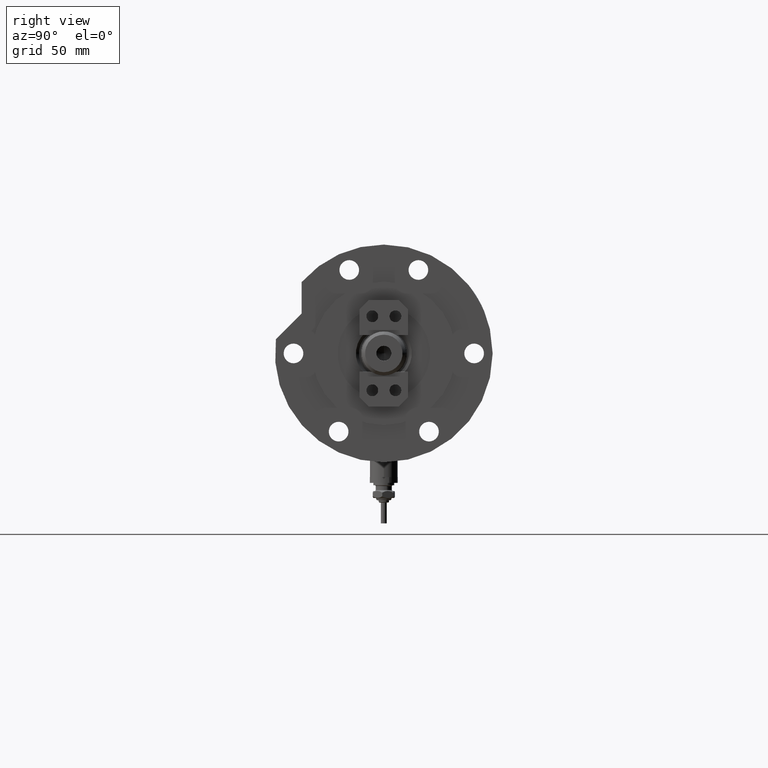
[diagram: clean part render]
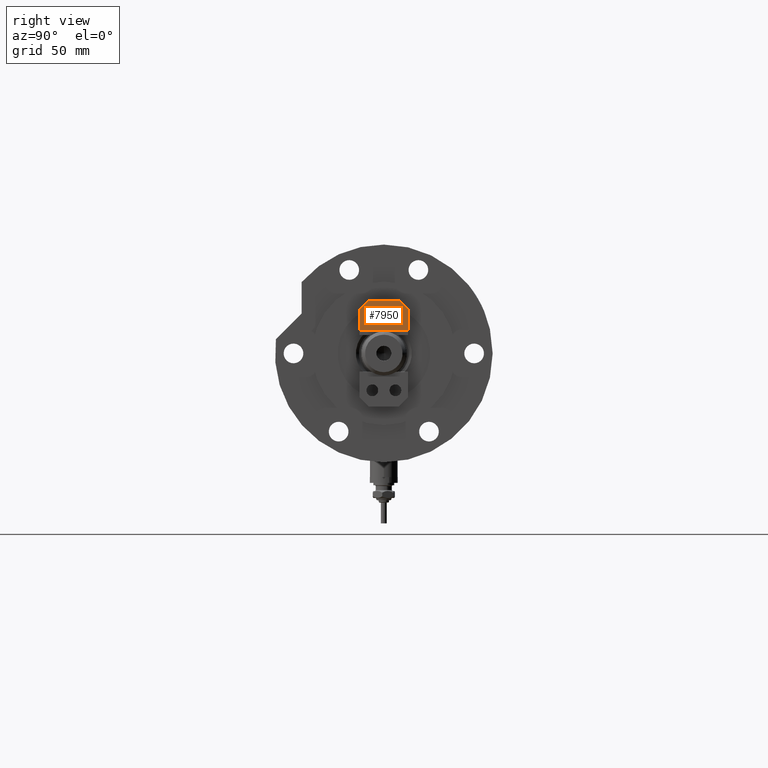
[diagram: same view with one face highlighted and labeled with its STEP entity id]
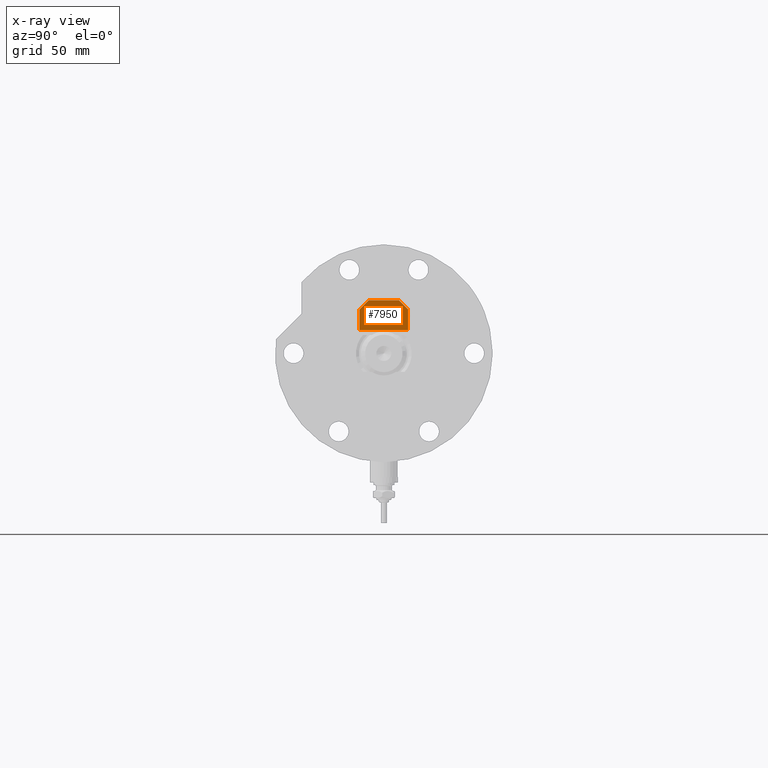
[diagram: x-ray of the same camera — body ghosted, the highlighted face saturated]
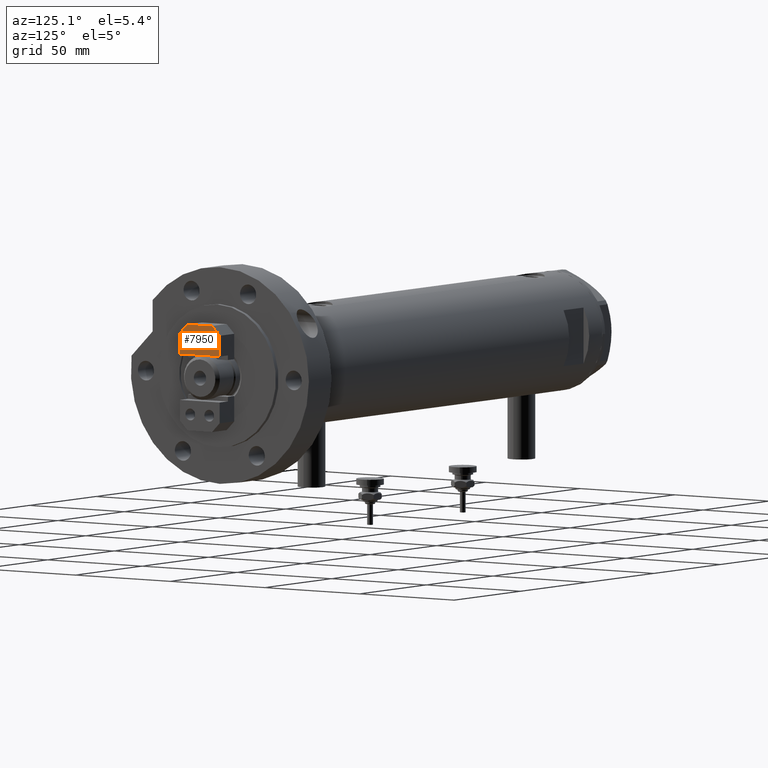
[diagram: same view with one face highlighted and labeled with its STEP entity id]
A machine part, right view. The second image highlights one B-rep face of the part: STEP entity #7950.
The next image is the same camera in x-ray: the body ghosted, the highlighted face saturated — about 0% of this face is hidden behind the body in this view.
A second angle (auxiliary view) of the same face is appended — the face is thin or edge-on in the first view.
In plain terms, the highlighted planar face has unit normal (1, -0, -0).
Its self-contained STEP definition (entity closure, byte-faithful):
#131 = VERTEX_POINT ( 'NONE', #6563 ) ;
#346 = DIRECTION ( 'NONE',  ( -1.000000000000000000, 0.000000000000000000, 0.000000000000000000 ) ) ;
#373 = CARTESIAN_POINT ( 'NONE',  ( 5.499999999999999112, 10.49999999999999822, 11.00000000000000000 ) ) ;
#419 = FACE_OUTER_BOUND ( 'NONE', #3415, .T. ) ;
#491 = EDGE_CURVE ( 'NONE', #131, #6639, #5237, .T. ) ;
#531 = AXIS2_PLACEMENT_3D ( 'NONE', #2885, #5541, #6066 ) ;
#697 = EDGE_CURVE ( 'NONE', #7316, #7827, #3597, .T. ) ;
#706 = AXIS2_PLACEMENT_3D ( 'NONE', #3429, #5577, #5533 ) ;
#710 = CARTESIAN_POINT ( 'NONE',  ( -0.5000000000000004441, -4.999999999999999112, 11.00000000000000000 ) ) ;
#798 = ORIENTED_EDGE ( 'NONE', *, *, #1372, .T. ) ;
#987 = CARTESIAN_POINT ( 'NONE',  ( 5.499999999999995559, 10.49999999999999822, 11.00000000000000000 ) ) ;
#1013 = CARTESIAN_POINT ( 'NONE',  ( -0.5000000000000004441, 4.999999999999999112, 11.00000000000000000 ) ) ;
#1136 = VECTOR ( 'NONE', #5015, 1000.000000000000000 ) ;
#1191 = VERTEX_POINT ( 'NONE', #987 ) ;
#1287 = VECTOR ( 'NONE', #5016, 1000.000000000000000 ) ;
#1372 = EDGE_CURVE ( 'NONE', #7100, #7236, #5136, .T. ) ;
#1555 = AXIS2_PLACEMENT_3D ( 'NONE', #1013, #3670, #346 ) ;
#1563 = CARTESIAN_POINT ( 'NONE',  ( -7.499999999999999112, -6.499999999999988454, 11.00000000000000000 ) ) ;
#1743 = CARTESIAN_POINT ( 'NONE',  ( -7.000000000000006217, -6.999999999999982236, 11.00000000000000000 ) ) ;
#1834 = DIRECTION ( 'NONE',  ( 1.000000000000000000, 0.000000000000000000, 0.000000000000000000 ) ) ;
#2054 = CARTESIAN_POINT ( 'NONE',  ( 5.499999999999999112, -10.49999999999999822, 11.00000000000000000 ) ) ;
#2065 = EDGE_CURVE ( 'NONE', #1191, #5424, #3789, .T. ) ;
#2143 = ORIENTED_EDGE ( 'NONE', *, *, #5491, .T. ) ;
#2227 = DIRECTION ( 'NONE',  ( -0.000000000000000000, 0.000000000000000000, 1.000000000000000000 ) ) ;
#2297 = EDGE_CURVE ( 'NONE', #4588, #5613, #5304, .T. ) ;
#2472 = CARTESIAN_POINT ( 'NONE',  ( 0.000000000000000000, 0.000000000000000000, 11.00000000000000000 ) ) ;
#2816 = CIRCLE ( 'NONE', #1555, 2.549999999999999822 ) ;
#2865 = AXIS2_PLACEMENT_3D ( 'NONE', #710, #5340, #5379 ) ;
#2885 = CARTESIAN_POINT ( 'NONE',  ( -0.5000000000000004441, -4.999999999999999112, 11.00000000000000000 ) ) ;
#3061 = FACE_BOUND ( 'NONE', #8157, .T. ) ;
#3125 = CARTESIAN_POINT ( 'NONE',  ( -3.050000000000000266, -4.999999999999999112, 11.00000000000000000 ) ) ;
#3143 = LINE ( 'NONE', #1743, #1287 ) ;
#3187 = DIRECTION ( 'NONE',  ( 1.000000000000000000, 0.000000000000000000, 0.000000000000000000 ) ) ;
#3230 = CARTESIAN_POINT ( 'NONE',  ( 2.049999999999999378, 4.999999999999999112, 11.00000000000000000 ) ) ;
#3328 = EDGE_CURVE ( 'NONE', #5613, #4588, #2816, .T. ) ;
#3415 = EDGE_LOOP ( 'NONE', ( #7048, #4819, #2143, #798, #8668, #5849 ) ) ;
#3429 = CARTESIAN_POINT ( 'NONE',  ( -0.5000000000000004441, 4.999999999999999112, 11.00000000000000000 ) ) ;
#3539 = LINE ( 'NONE', #4249, #5901 ) ;
#3597 = CIRCLE ( 'NONE', #531, 2.549999999999999822 ) ;
#3670 = DIRECTION ( 'NONE',  ( 0.000000000000000000, 0.000000000000000000, -1.000000000000000000 ) ) ;
#3789 = LINE ( 'NONE', #6331, #1136 ) ;
#3791 = CARTESIAN_POINT ( 'NONE',  ( 2.049999999999999378, -4.999999999999999112, 11.00000000000000000 ) ) ;
#3829 = DIRECTION ( 'NONE',  ( 8.260587980841940012E-17, -1.000000000000000000, 0.000000000000000000 ) ) ;
#3984 = ORIENTED_EDGE ( 'NONE', *, *, #2297, .T. ) ;
#4026 = VECTOR ( 'NONE', #3187, 1000.000000000000000 ) ;
#4176 = ORIENTED_EDGE ( 'NONE', *, *, #7680, .T. ) ;
#4249 = CARTESIAN_POINT ( 'NONE',  ( -6.999999999999987566, 7.000000000000012434, 11.00000000000000000 ) ) ;
#4485 = CARTESIAN_POINT ( 'NONE',  ( -7.500000000000000888, 10.49999999999999822, 11.00000000000000000 ) ) ;
#4588 = VERTEX_POINT ( 'NONE', #5238 ) ;
#4819 = ORIENTED_EDGE ( 'NONE', *, *, #2065, .T. ) ;
#4851 = FACE_BOUND ( 'NONE', #7863, .T. ) ;
#4927 = VECTOR ( 'NONE', #5058, 1000.000000000000000 ) ;
#4985 = DIRECTION ( 'NONE',  ( -0.7071067811865487940, -0.7071067811865463515, -0.000000000000000000 ) ) ;
#5015 = DIRECTION ( 'NONE',  ( -1.000000000000000000, -0.000000000000000000, -0.000000000000000000 ) ) ;
#5016 = DIRECTION ( 'NONE',  ( 0.7071067811865463515, -0.7071067811865487940, 0.000000000000000000 ) ) ;
#5058 = DIRECTION ( 'NONE',  ( -0.000000000000000000, -1.000000000000000000, -0.000000000000000000 ) ) ;
#5136 = LINE ( 'NONE', #4485, #6291 ) ;
#5229 = AXIS2_PLACEMENT_3D ( 'NONE', #2472, #2227, #1834 ) ;
#5237 = LINE ( 'NONE', #8056, #4026 ) ;
#5238 = CARTESIAN_POINT ( 'NONE',  ( -3.050000000000000266, 4.999999999999999112, 11.00000000000000000 ) ) ;
#5304 = CIRCLE ( 'NONE', #706, 2.549999999999999822 ) ;
#5324 = ORIENTED_EDGE ( 'NONE', *, *, #697, .T. ) ;
#5340 = DIRECTION ( 'NONE',  ( 0.000000000000000000, 0.000000000000000000, -1.000000000000000000 ) ) ;
#5379 = DIRECTION ( 'NONE',  ( -1.000000000000000000, 0.000000000000000000, 0.000000000000000000 ) ) ;
#5424 = VERTEX_POINT ( 'NONE', #6206 ) ;
#5491 = EDGE_CURVE ( 'NONE', #5424, #7100, #3539, .T. ) ;
#5533 = DIRECTION ( 'NONE',  ( -1.000000000000000000, 0.000000000000000000, 0.000000000000000000 ) ) ;
#5541 = DIRECTION ( 'NONE',  ( 0.000000000000000000, 0.000000000000000000, -1.000000000000000000 ) ) ;
#5577 = DIRECTION ( 'NONE',  ( 0.000000000000000000, 0.000000000000000000, -1.000000000000000000 ) ) ;
#5613 = VERTEX_POINT ( 'NONE', #3230 ) ;
#5736 = ORIENTED_EDGE ( 'NONE', *, *, #3328, .T. ) ;
#5849 = ORIENTED_EDGE ( 'NONE', *, *, #491, .T. ) ;
#5901 = VECTOR ( 'NONE', #4985, 1000.000000000000000 ) ;
#6035 = EDGE_CURVE ( 'NONE', #7236, #131, #3143, .T. ) ;
#6066 = DIRECTION ( 'NONE',  ( -1.000000000000000000, 0.000000000000000000, 0.000000000000000000 ) ) ;
#6124 = EDGE_CURVE ( 'NONE', #1191, #6639, #6376, .T. ) ;
#6206 = CARTESIAN_POINT ( 'NONE',  ( -3.499999999999992006, 10.49999999999999822, 11.00000000000000000 ) ) ;
#6291 = VECTOR ( 'NONE', #3829, 1000.000000000000000 ) ;
#6331 = CARTESIAN_POINT ( 'NONE',  ( -7.500000000000000888, 10.49999999999999822, 11.00000000000000000 ) ) ;
#6376 = LINE ( 'NONE', #373, #4927 ) ;
#6563 = CARTESIAN_POINT ( 'NONE',  ( -3.500000000000002220, -10.49999999999999822, 11.00000000000000000 ) ) ;
#6639 = VERTEX_POINT ( 'NONE', #2054 ) ;
#7048 = ORIENTED_EDGE ( 'NONE', *, *, #6124, .F. ) ;
#7100 = VERTEX_POINT ( 'NONE', #7431 ) ;
#7236 = VERTEX_POINT ( 'NONE', #1563 ) ;
#7316 = VERTEX_POINT ( 'NONE', #3791 ) ;
#7431 = CARTESIAN_POINT ( 'NONE',  ( -7.500000000000000888, 6.500000000000002665, 11.00000000000000000 ) ) ;
#7591 = PLANE ( 'NONE',  #5229 ) ;
#7680 = EDGE_CURVE ( 'NONE', #7827, #7316, #8333, .T. ) ;
#7827 = VERTEX_POINT ( 'NONE', #3125 ) ;
#7863 = EDGE_LOOP ( 'NONE', ( #4176, #5324 ) ) ;
#7950 = ADVANCED_FACE ( 'NONE', ( #4851, #3061, #419 ), #7591, .T. ) ;
#8056 = CARTESIAN_POINT ( 'NONE',  ( -7.499999999999999112, -10.49999999999999822, 11.00000000000000000 ) ) ;
#8157 = EDGE_LOOP ( 'NONE', ( #3984, #5736 ) ) ;
#8333 = CIRCLE ( 'NONE', #2865, 2.549999999999999822 ) ;
#8668 = ORIENTED_EDGE ( 'NONE', *, *, #6035, .T. ) ;